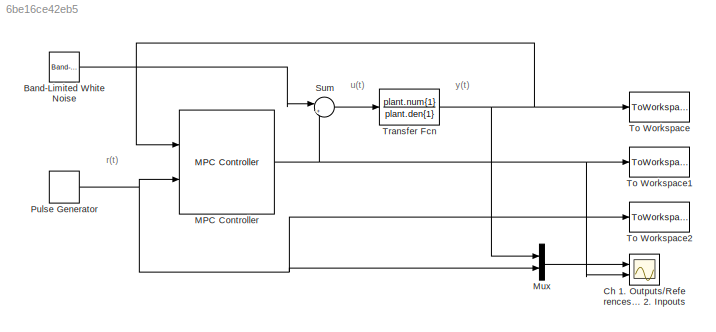
MODEL slx_6be16ce42eb5
KIND model
CONFIG AbsTol = auto
CONFIG FixedStep = auto
CONFIG MaxStep = auto
CONFIG MinStep = auto
CONFIG RelTol = 1e-3
CONFIG SampleTimeConstraint = Unconstrained
CONFIG Solver = ode45
CONFIG SolverMode = SingleTasking
CONFIG SolverName = ode45
CONFIG StartTime = 0.0
CONFIG StopTime = simu.simulation_time
BLOCK [Reference] Band-Limited White Noise  REF=simulink/Sources/Band-Limited
White Noise
  Cov = [simu.noise_level]
  Ports = [0, 1]
  SourceBlock = simulink/Sources/Band-Limited\nWhite Noise
  SourceType = Band-Limited White Noise.
  Ts = 0.01
  VectorParams1D = on
  seed = [23341]
BLOCK [Scope] Ch 1. Outputs//References Ch 2. Inpouts
  DataFormat = Structure
  Floating = off
  LimitDataPoints = off
  NumInputPorts = 2
  Ports = [2]
  SampleInput = on
  SampleTime = 0.01
  TimeRange = 10
  YMax = 1.5~5
  YMin = 0~-5
BLOCK [Reference] MPC Controller  REF=mpclib/MPC Controller  (lib defined in mdl_ae329e0e0455)
  BlockDataType = double
  Ports = [2, 1]
  SampleTimeInherited = off
  SourceBlock = mpclib/MPC Controller
  SourceType = MPC
  cost_outport = off
  duwt_inport = off
  enable_value = 0
  from_project = off
  is_designfromscratch = 0
  is_multiple = 0
  lims_inport = off
  md_from_ws = off
  md_inport = off
  md_preview = on
  md_signal_name = []
  mpcobj = mpcobj
  mv_inport = off
  n_md = 0
  n_mo = 1
  n_mv = 1
  n_ts = 0.4
  project_file = MPCtask.mat
  ref_from_ws = off
  ref_preview = on
  ref_signal_name = []
  return_qpstatus = off
  return_sequence = off
  return_state = off
  return_u0 = off
  rhoeps_inport = off
  state_inport = off
  switch_inport = off
  uref_inport = off
  uwt_inport = off
  x0 = []
  ywt_inport = off
BLOCK [Mux] Mux
  DisplayOption = bar
  Inputs = 2
  Ports = [2, 1]
BLOCK [DiscretePulseGenerator] Pulse Generator
  Period = 50
  Ports = [0, 1]
  PulseType = Time based
  PulseWidth = 50
  VectorParams1D = off
BLOCK [Sum] Sum
  IconShape = round
  InputSameDT = off
  Inputs = |++
  OutDataTypeStr = Inherit: Inherit via internal rule
  Ports = [2, 1]
  SaturateOnIntegerOverflow = off
BLOCK [ToWorkspace] To Workspace
  MaxDataPoints = Inf
  Ports = [1]
  SampleTime = simu.samlping_time
  SaveFormat = Timeseries
  VariableName = y
BLOCK [ToWorkspace] To Workspace1
  MaxDataPoints = Inf
  Ports = [1]
  SampleTime = simu.samlping_time
  SaveFormat = Timeseries
  VariableName = u
BLOCK [ToWorkspace] To Workspace2
  MaxDataPoints = Inf
  Ports = [1]
  SampleTime = simu.samlping_time
  SaveFormat = Timeseries
  VariableName = ref
BLOCK [TransferFcn] Transfer Fcn
  Denominator = plant.den{1}
  Numerator = plant.num{1}
ANNOTATION (root): r(t)
ANNOTATION (root): u(t)
ANNOTATION (root): y(t)
LINE Band-Limited White Noise:1 -> Sum:1
NET MPC Controller:1 -> Ch 1. Outputs//References Ch 2. Inpouts:2, Sum:2, To Workspace1:1
LINE Mux:1 -> Ch 1. Outputs//References Ch 2. Inpouts:1
NET Pulse Generator:1 -> MPC Controller:2, Mux:2, To Workspace2:1
LINE Sum:1 -> Transfer Fcn:1
NET Transfer Fcn:1 -> MPC Controller:1, Mux:1, To Workspace:1
note: NET lines group one-source signal fan-out (src -> all destinations, sorted); 1:1 wires keep LINE
